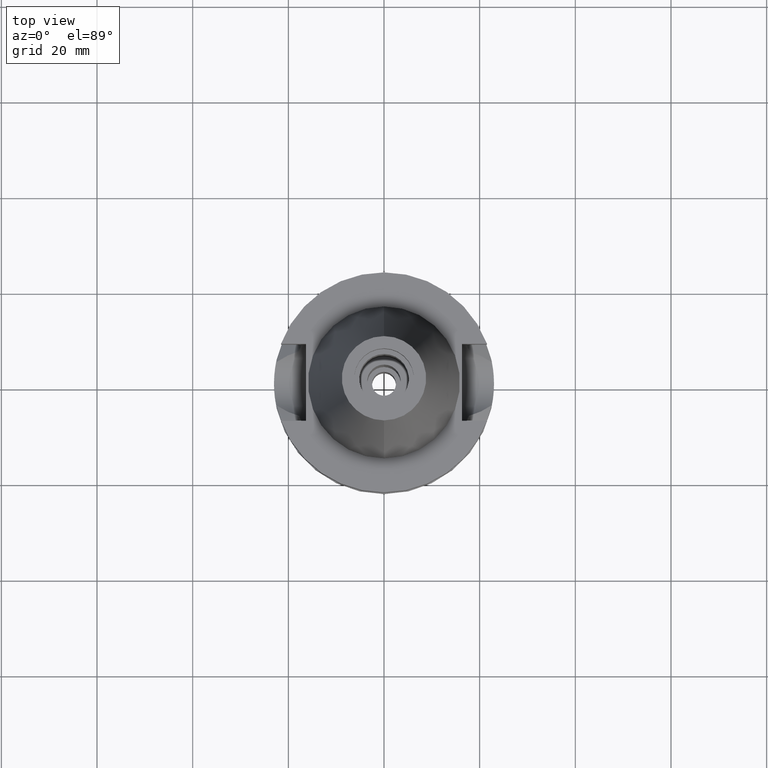
[diagram: clean part render]
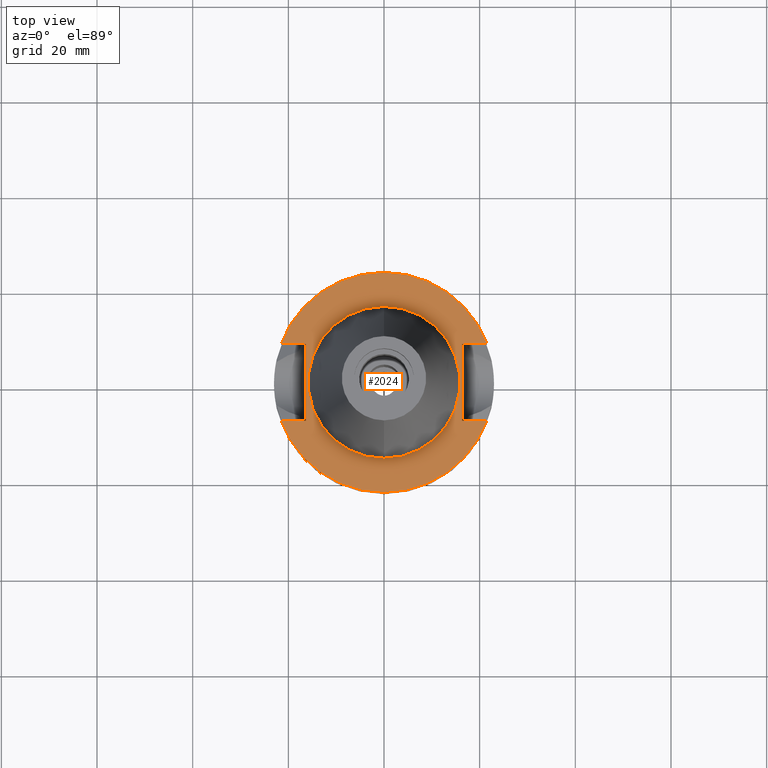
[diagram: same view with one face highlighted and labeled with its STEP entity id]
A machine part, top view. The second image highlights one B-rep face of the part: STEP entity #2024.
In plain terms, the highlighted planar face has unit normal (0, 0, -1).
Its self-contained STEP definition (entity closure, byte-faithful):
#840=DIRECTION('',(1.E0,9.380896855522E-14,0.E0));
#841=VECTOR('',#840,5.245243094473E0);
#842=CARTESIAN_POINT('',(1.63E1,8.05E0,-1.E0));
#843=LINE('',#842,#841);
#877=DIRECTION('',(0.E0,1.E0,0.E0));
#878=VECTOR('',#877,1.61E1);
#879=CARTESIAN_POINT('',(-1.63E1,-8.05E0,-1.E0));
#880=LINE('',#879,#878);
#884=DIRECTION('',(-1.E0,9.347030801892E-14,0.E0));
#885=VECTOR('',#884,5.245243094473E0);
#886=CARTESIAN_POINT('',(-1.63E1,8.05E0,-1.E0));
#887=LINE('',#886,#885);
#891=CARTESIAN_POINT('',(0.E0,1.902121408436E-14,-1.E0));
#892=DIRECTION('',(0.E0,0.E0,-1.E0));
#893=DIRECTION('',(-9.367496997598E-1,3.5E-1,0.E0));
#894=AXIS2_PLACEMENT_3D('',#891,#892,#893);
#899=CARTESIAN_POINT('',(0.E0,1.902121408436E-14,-1.E0));
#900=DIRECTION('',(0.E0,0.E0,-1.E0));
#901=DIRECTION('',(0.E0,1.E0,0.E0));
#902=AXIS2_PLACEMENT_3D('',#899,#900,#901);
#907=DIRECTION('',(0.E0,-1.E0,0.E0));
#908=VECTOR('',#907,1.61E1);
#909=CARTESIAN_POINT('',(1.63E1,8.05E0,-1.E0));
#910=LINE('',#909,#908);
#914=DIRECTION('',(1.E0,-9.347030801892E-14,0.E0));
#915=VECTOR('',#914,5.245243094473E0);
#916=CARTESIAN_POINT('',(1.63E1,-8.05E0,-1.E0));
#917=LINE('',#916,#915);
#921=CARTESIAN_POINT('',(0.E0,1.902121408436E-14,-1.E0));
#922=DIRECTION('',(0.E0,0.E0,-1.E0));
#923=DIRECTION('',(9.367496997598E-1,-3.5E-1,0.E0));
#924=AXIS2_PLACEMENT_3D('',#921,#922,#923);
#929=CARTESIAN_POINT('',(0.E0,1.902121408436E-14,-1.E0));
#930=DIRECTION('',(0.E0,0.E0,-1.E0));
#931=DIRECTION('',(0.E0,-1.E0,0.E0));
#932=AXIS2_PLACEMENT_3D('',#929,#930,#931);
#937=CARTESIAN_POINT('',(0.E0,1.902121408436E-14,-9.999999999999E-1));
#938=DIRECTION('',(0.E0,0.E0,1.E0));
#939=DIRECTION('',(0.E0,-1.E0,0.E0));
#940=AXIS2_PLACEMENT_3D('',#937,#938,#939);
#945=CARTESIAN_POINT('',(0.E0,1.902121408436E-14,-9.999999999999E-1));
#946=DIRECTION('',(0.E0,0.E0,1.E0));
#947=DIRECTION('',(0.E0,1.E0,0.E0));
#948=AXIS2_PLACEMENT_3D('',#945,#946,#947);
#993=DIRECTION('',(-1.E0,-9.313164748262E-14,0.E0));
#994=VECTOR('',#993,5.245243094473E0);
#995=CARTESIAN_POINT('',(-1.63E1,-8.05E0,-1.E0));
#996=LINE('',#995,#994);
#1250=CARTESIAN_POINT('',(-1.63E1,-8.05E0,-1.E0));
#1251=VERTEX_POINT('',#1250);
#1252=CARTESIAN_POINT('',(-2.154524309447E1,-8.05E0,-1.E0));
#1253=VERTEX_POINT('',#1252);
#1254=CARTESIAN_POINT('',(-1.63E1,8.05E0,-1.E0));
#1255=VERTEX_POINT('',#1254);
#1256=CARTESIAN_POINT('',(-2.154524309447E1,8.05E0,-1.E0));
#1257=VERTEX_POINT('',#1256);
#1258=CARTESIAN_POINT('',(0.E0,2.3E1,-1.E0));
#1259=CARTESIAN_POINT('',(2.154524309447E1,8.05E0,-1.E0));
#1260=VERTEX_POINT('',#1258);
#1261=VERTEX_POINT('',#1259);
#1262=CARTESIAN_POINT('',(1.63E1,8.05E0,-1.E0));
#1263=VERTEX_POINT('',#1262);
#1264=CARTESIAN_POINT('',(1.63E1,-8.05E0,-1.E0));
#1265=VERTEX_POINT('',#1264);
#1266=CARTESIAN_POINT('',(2.154524309447E1,-8.05E0,-1.E0));
#1267=VERTEX_POINT('',#1266);
#1268=CARTESIAN_POINT('',(0.E0,-2.3E1,-1.E0));
#1269=VERTEX_POINT('',#1268);
#1270=CARTESIAN_POINT('',(0.E0,-1.5875E1,-9.999999999999E-1));
#1271=CARTESIAN_POINT('',(0.E0,1.5875E1,-9.999999999999E-1));
#1272=VERTEX_POINT('',#1270);
#1273=VERTEX_POINT('',#1271);
#1996=CARTESIAN_POINT('',(0.E0,1.212400331156E-14,-1.E0));
#1997=DIRECTION('',(0.E0,0.E0,-1.E0));
#1998=DIRECTION('',(0.E0,-1.E0,0.E0));
#1999=AXIS2_PLACEMENT_3D('',#1996,#1997,#1998);
#2000=PLANE('',#1999);
#2002=ORIENTED_EDGE('',*,*,#2001,.T.);
#2003=ORIENTED_EDGE('',*,*,#1941,.T.);
#2004=ORIENTED_EDGE('',*,*,#1961,.T.);
#2005=ORIENTED_EDGE('',*,*,#1959,.T.);
#2006=ORIENTED_EDGE('',*,*,#1975,.F.);
#2007=ORIENTED_EDGE('',*,*,#1986,.T.);
#2009=ORIENTED_EDGE('',*,*,#2008,.T.);
#2011=ORIENTED_EDGE('',*,*,#2010,.T.);
#2013=ORIENTED_EDGE('',*,*,#2012,.T.);
#2015=ORIENTED_EDGE('',*,*,#2014,.F.);
#2016=EDGE_LOOP('',(#2002,#2003,#2004,#2005,#2006,#2007,#2009,#2011,#2013,
#2015));
#2017=FACE_OUTER_BOUND('',#2016,.F.);
#2019=ORIENTED_EDGE('',*,*,#2018,.T.);
#2021=ORIENTED_EDGE('',*,*,#2020,.T.);
#2022=EDGE_LOOP('',(#2019,#2021));
#2023=FACE_BOUND('',#2022,.F.);
#895=CIRCLE('',#894,2.3E1);
#903=CIRCLE('',#902,2.3E1);
#925=CIRCLE('',#924,2.3E1);
#933=CIRCLE('',#932,2.3E1);
#941=CIRCLE('',#940,1.5875E1);
#949=CIRCLE('',#948,1.5875E1);
#1941=EDGE_CURVE('',#1255,#1257,#887,.T.);
#1959=EDGE_CURVE('',#1260,#1261,#903,.T.);
#1961=EDGE_CURVE('',#1257,#1260,#895,.T.);
#1975=EDGE_CURVE('',#1263,#1261,#843,.T.);
#1986=EDGE_CURVE('',#1263,#1265,#910,.T.);
#2001=EDGE_CURVE('',#1251,#1255,#880,.T.);
#2008=EDGE_CURVE('',#1265,#1267,#917,.T.);
#2010=EDGE_CURVE('',#1267,#1269,#925,.T.);
#2012=EDGE_CURVE('',#1269,#1253,#933,.T.);
#2014=EDGE_CURVE('',#1251,#1253,#996,.T.);
#2018=EDGE_CURVE('',#1272,#1273,#941,.T.);
#2020=EDGE_CURVE('',#1273,#1272,#949,.T.);
#2024=ADVANCED_FACE('',(#2017,#2023),#2000,.F.);